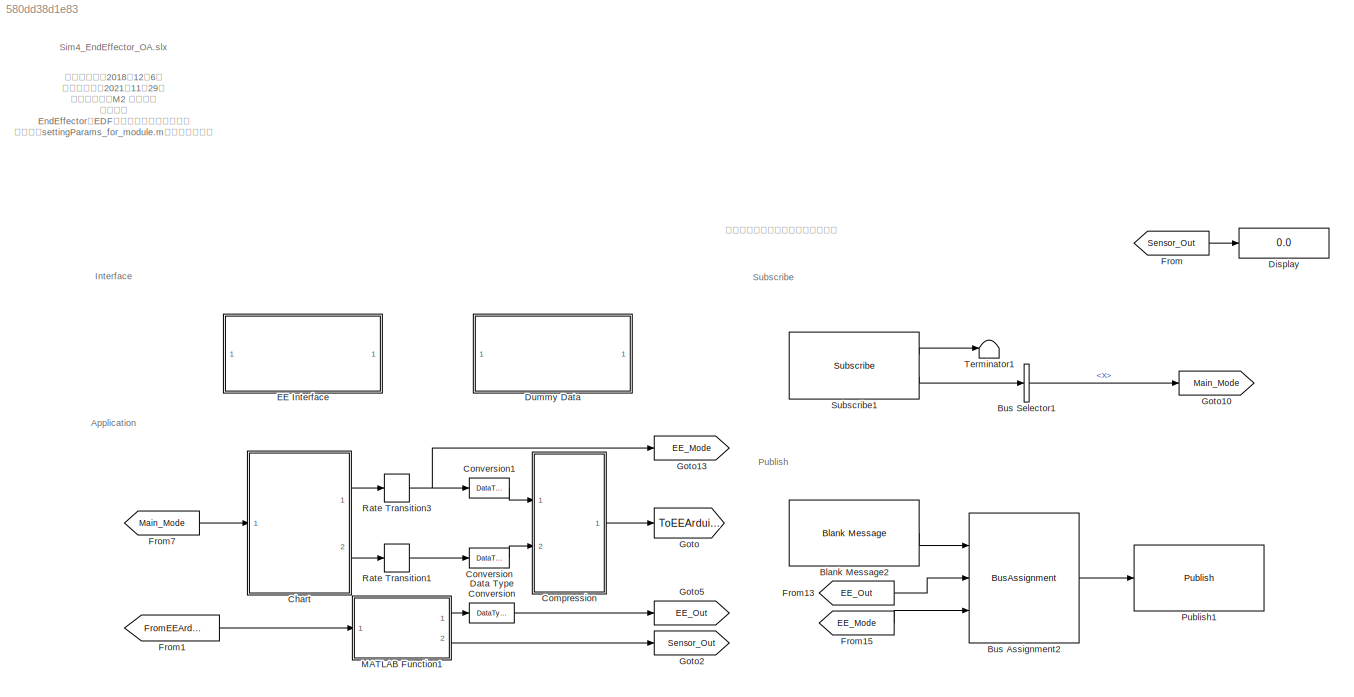
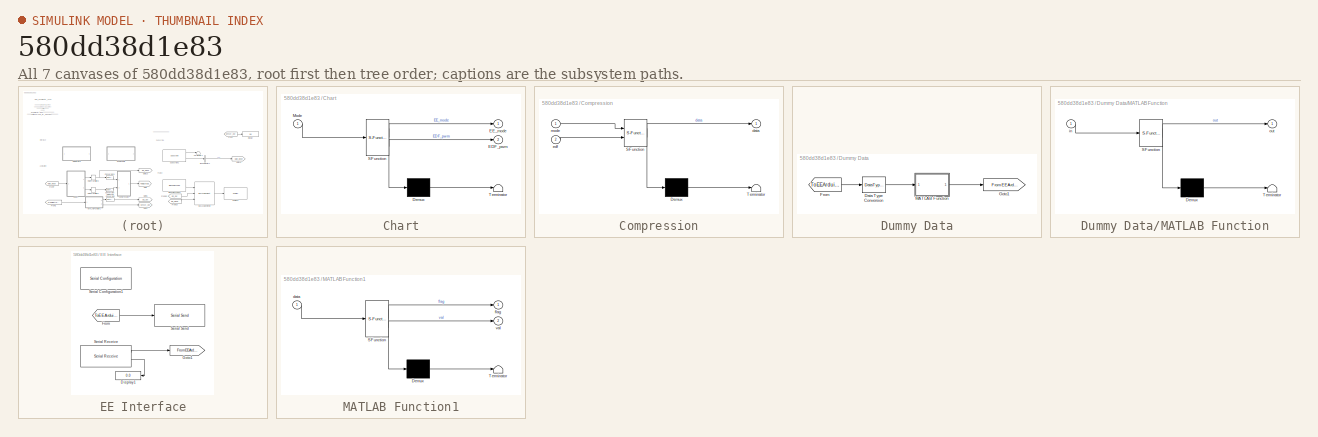
[diagram: thumbnail index - all 7 canvases of the model, root first then tree order]
MODEL slx_580dd38d1e83
KIND model
CONFIG AbsTol = auto
CONFIG EnableMultiTasking = off
CONFIG FixedStep = auto
CONFIG InitFcn = run('settingParams.m')\n%GUI = evalin('base','GUI_handle');
CONFIG MaxStep = auto
CONFIG MinStep = auto
CONFIG PreLoadFcn = %GUI = evalin('base','GUI_handle');
CONFIG RelTol = 1e-3
CONFIG SampleTimeConstraint = Unconstrained
CONFIG SolverName = VariableStepAuto
CONFIG StartTime = 0.0
CONFIG StopTime = Inf
BLOCK [Reference] Blank Message2  REF=robotlib/Blank Message
  Ports = [0, 1]
  SourceBlock = robotlib/Blank Message
  SourceProductBaseCode = RR
  SourceType = ROS Blank Message
BLOCK [BusAssignment] Bus Assignment2
  AssignedSignals = Twist.Linear.X,Twist.Linear.Y
  Ports = [3, 1]
BLOCK [BusSelector] Bus Selector1
  OutputSignals = Twist.Linear.X
  Ports = [1, 1]
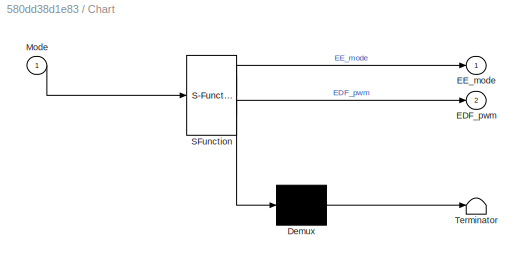
BLOCK [SubSystem] Chart
  ErrorFcn = Stateflow.Translate.translate
  PermitHierarchicalResolution = ExplicitOnly
  Ports = [1, 2]
  RequestExecContextInheritance = off
  SFBlockType = Chart
  TreatAsAtomicUnit = on
BLOCK [Demux] Chart/ Demux 
  Outputs = 1
  Ports = [1, 1]
BLOCK [S-Function] Chart/ SFunction 
  EnableBusSupport = off
  FunctionName = sf_sfun
  PortCounts = [1 3]
  Ports = [1, 3]
  SFcnIsStateOwnerBlock = off
  SFunctionDeploymentMode = off
  Tag = Stateflow S-Function 10
BLOCK [Terminator] Chart/ Terminator 
BLOCK [Outport] Chart/EDF_pwm
  Port = 2
  VectorParamsAs1DForOutWhenUnconnected = off
BLOCK [Outport] Chart/EE_mode
  VectorParamsAs1DForOutWhenUnconnected = off
BLOCK [Inport] Chart/Mode
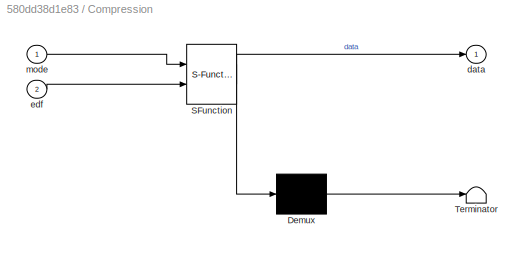
BLOCK [SubSystem] Compression
  ErrorFcn = Stateflow.Translate.translate
  PermitHierarchicalResolution = ExplicitOnly
  Ports = [2, 1]
  RequestExecContextInheritance = off
  SFBlockType = MATLAB Function
  TreatAsAtomicUnit = on
BLOCK [Demux] Compression/ Demux 
  Outputs = 1
  Ports = [1, 1]
BLOCK [S-Function] Compression/ SFunction 
  EnableBusSupport = off
  FunctionName = sf_sfun
  PortCounts = [2 2]
  Ports = [2, 2]
  SFcnIsStateOwnerBlock = off
  SFunctionDeploymentMode = off
  Tag = Stateflow S-Function 16
BLOCK [Terminator] Compression/ Terminator 
BLOCK [Outport] Compression/data
  VectorParamsAs1DForOutWhenUnconnected = off
BLOCK [Inport] Compression/edf
  Port = 2
BLOCK [Inport] Compression/mode
BLOCK [DataTypeConversion] Conversion
  OutDataTypeStr = uint8
  RndMeth = Floor
  SaturateOnIntegerOverflow = off
BLOCK [DataTypeConversion] Conversion1
  OutDataTypeStr = uint8
  RndMeth = Floor
  SaturateOnIntegerOverflow = off
BLOCK [DataTypeConversion] Data Type Conversion
  RndMeth = Floor
  SaturateOnIntegerOverflow = off
BLOCK [Display] Display
  Decimation = 1
  Ports = [1]
BLOCK [SubSystem] Dummy Data
  Commented = on
  Ports = []
  RequestExecContextInheritance = off
BLOCK [DataTypeConversion] Dummy Data/Data Type Conversion
  OutDataTypeStr = double
  RndMeth = Floor
  SaturateOnIntegerOverflow = off
BLOCK [From] Dummy Data/From
  GotoTag = ToEEArduino
  TagVisibility = global
BLOCK [Goto] Dummy Data/Goto1
  GotoTag = FromEEArduino
  TagVisibility = global
BLOCK [SubSystem] Dummy Data/MATLAB Function
  ErrorFcn = Stateflow.Translate.translate
  PermitHierarchicalResolution = ExplicitOnly
  Ports = [1, 1]
  RequestExecContextInheritance = off
  SFBlockType = MATLAB Function
  TreatAsAtomicUnit = on
BLOCK [Demux] Dummy Data/MATLAB Function/ Demux 
  Outputs = 1
  Ports = [1, 1]
BLOCK [S-Function] Dummy Data/MATLAB Function/ SFunction 
  EnableBusSupport = off
  FunctionName = sf_sfun
  PortCounts = [1 2]
  Ports = [1, 2]
  SFcnIsStateOwnerBlock = off
  SFunctionDeploymentMode = off
  Tag = Stateflow S-Function 1
BLOCK [Terminator] Dummy Data/MATLAB Function/ Terminator 
BLOCK [Inport] Dummy Data/MATLAB Function/in
BLOCK [Outport] Dummy Data/MATLAB Function/out
  VectorParamsAs1DForOutWhenUnconnected = off
BLOCK [SubSystem] EE Interface
  Ports = []
  RequestExecContextInheritance = off
BLOCK [Display] EE Interface/Display1
  Commented = on
  Decimation = 1
  Format = long
  Ports = [1]
BLOCK [From] EE Interface/From
  GotoTag = ToEEArduino
  TagVisibility = global
BLOCK [Goto] EE Interface/Goto1
  GotoTag = FromEEArduino
  TagVisibility = global
BLOCK [Reference] EE Interface/Serial Configuration1  REF=instrumentseriallib/Serial Configuration
  Ports = []
  Priority = -200000
  SourceBlock = instrumentseriallib/Serial Configuration
  SourceProductBaseCode = IC
  SourceType = system.SerialConfiguration
BLOCK [Reference] EE Interface/Serial Receive  REF=instrumentseriallib/Serial Receive
  Ports = [0, 2]
  Priority = 1
  SourceBlock = instrumentseriallib/Serial Receive
  SourceProductBaseCode = IC
  SourceType = system.SerialReceive
BLOCK [Reference] EE Interface/Serial Send  REF=instrumentseriallib/Serial Send
  Ports = [1]
  Priority = 1
  SourceBlock = instrumentseriallib/Serial Send
  SourceProductBaseCode = IC
  SourceType = system.SerialSend
BLOCK [From] From
  GotoTag = Sensor_Out
  TagVisibility = global
BLOCK [From] From1
  GotoTag = FromEEArduino
  TagVisibility = global
BLOCK [From] From13
  GotoTag = EE_Out
  TagVisibility = global
BLOCK [From] From15
  GotoTag = EE_Mode
  TagVisibility = global
BLOCK [From] From7
  GotoTag = Main_Mode
  TagVisibility = global
BLOCK [Goto] Goto
  GotoTag = ToEEArduino
  TagVisibility = global
BLOCK [Goto] Goto10
  GotoTag = Main_Mode
  TagVisibility = global
BLOCK [Goto] Goto13
  GotoTag = EE_Mode
  TagVisibility = global
BLOCK [Goto] Goto2
  GotoTag = Sensor_Out
  TagVisibility = global
BLOCK [Goto] Goto5
  GotoTag = EE_Out
  TagVisibility = global
BLOCK [SubSystem] MATLAB Function1
  ErrorFcn = Stateflow.Translate.translate
  PermitHierarchicalResolution = ExplicitOnly
  Ports = [1, 2]
  RequestExecContextInheritance = off
  SFBlockType = MATLAB Function
  TreatAsAtomicUnit = on
BLOCK [Demux] MATLAB Function1/ Demux 
  Outputs = 1
  Ports = [1, 1]
BLOCK [S-Function] MATLAB Function1/ SFunction 
  EnableBusSupport = off
  FunctionName = sf_sfun
  PortCounts = [1 3]
  Ports = [1, 3]
  SFcnIsStateOwnerBlock = off
  SFunctionDeploymentMode = off
  Tag = Stateflow S-Function 18
BLOCK [Terminator] MATLAB Function1/ Terminator 
BLOCK [Inport] MATLAB Function1/data
BLOCK [Outport] MATLAB Function1/flag
  VectorParamsAs1DForOutWhenUnconnected = off
BLOCK [Outport] MATLAB Function1/val
  Port = 2
  VectorParamsAs1DForOutWhenUnconnected = off
BLOCK [Reference] Publish1  REF=robotlib/Publish
  Ports = [1]
  SourceBlock = robotlib/Publish
  SourceProductBaseCode = RR
  SourceType = ROS Publish
BLOCK [RateTransition] Rate Transition1
  OutPortSampleTime = 0.1
BLOCK [RateTransition] Rate Transition3
  OutPortSampleTime = 0.1
BLOCK [Reference] Subscribe1  REF=robotlib/Subscribe
  Ports = [0, 2]
  SourceBlock = robotlib/Subscribe
  SourceProductBaseCode = RR
  SourceType = ROS Subscribe
BLOCK [Terminator] Terminator1
ANNOTATION (root): 初回作成日：2018年12月6日 最終更新日：2021 年11月29日 最終更新者：M2 塩路甲斐 注意点： EndEffectorとEDFを制御するモデルです． 実行時にsettingParams_for_module.mを実行します． 実働時にはワーカーとして立ち上がるため，Supervisorとは別のワークスペースを適用します． EEのArduinoプログラム"EE_OA.ino"が書き込まれていることを確認してください． Setting Parameter： dt
ANNOTATION (root): ※直交アーム用のプログラムです！
ANNOTATION (root): Application
ANNOTATION (root): Interface
ANNOTATION (root): Publish
ANNOTATION (root): Sim4_EndEffector_OA.slx
ANNOTATION (root): Subscribe
LINE Blank Message2:1 -> Bus Assignment2:1
LINE Bus Assignment2:1 -> Publish1:1
LINE Bus Selector1:1 -> Goto10:1
LINE Chart:1 -> Rate Transition3:1
LINE Chart:2 -> Rate Transition1:1
LINE Compression:1 -> Goto:1
LINE Conversion1:1 -> Compression:1
LINE Conversion:1 -> Compression:2
LINE Data Type Conversion:1 -> Goto5:1
LINE Dummy Data/Data Type Conversion:1 -> Dummy Data/MATLAB Function:1
LINE Dummy Data/From:1 -> Dummy Data/Data Type Conversion:1
LINE Dummy Data/MATLAB Function:1 -> Dummy Data/Goto1:1
LINE EE Interface/From:1 -> EE Interface/Serial Send:1
LINE EE Interface/Serial Receive:1 -> EE Interface/Goto1:1
LINE EE Interface/Serial Receive:2 -> EE Interface/Display1:1
LINE From13:1 -> Bus Assignment2:2
LINE From15:1 -> Bus Assignment2:3
LINE From1:1 -> MATLAB Function1:1
LINE From7:1 -> Chart:1
LINE From:1 -> Display:1
LINE MATLAB Function1:1 -> Data Type Conversion:1
LINE MATLAB Function1:2 -> Goto2:1
LINE Rate Transition1:1 -> Conversion:1
NET Rate Transition3:1 -> Conversion1:1, Goto13:1
LINE Subscribe1:1 -> Terminator1:1
LINE Subscribe1:2 -> Bus Selector1:1
note: NET lines group one-source signal fan-out (src -> all destinations, sorted); 1:1 wires keep LINE
CHART Dummy Data/MATLAB Function states=1 transitions=1
  STATE_LABEL 'eML_blk_kernel()'
  STATE_LABEL 'SCRIPT:\nfunction out = fcn(in)\n\nswitch in\n    case 0\n        data = 0;\n    case 1\n        data = 5;\n    case 2\n        data = 6;\n    case 3\n        data = 7;\n    case 4\n        data = 4;\n    otherwise\n        data = 0;\nend\n\nout = uint8(bitshift(data,5));'
CHART Chart states=7 transitions=9
  STATE_LABEL 'EE_mode0 待機\nEE_mode1 吸引指令\nEE_mode2 EE閉じる（吸引）\nEE_mode3 EE開く（吸引）\nEE_mode4 閉じたままホールド'
  STATE_LABEL 'Mode42 EE吸引\nMode43 光センサ\n\nMode45 上EESW反応\nMode61 把持成功\n\n\nMode47 収穫失敗\nMode70 終了モード'
  STATE_LABEL 'm03/\n% 切断2_逆転中\nentry:\nEE_mode=3;\nEDF_pwm=17;'
  STATE_LABEL 'm0/\n% 待機中\nentry:\nEE_mode=0;\nEDF_pwm=0;'
  STATE_LABEL 'm01/\n% 吸引中\nentry:\nEE_mode=1;\nEDF_pwm=19;'
  STATE_LABEL 'm04/\n% 把持中\nentry:\nEE_mode=4;\nEDF_pwm=18;'
  STATE_LABEL 'm02/\n% 切断1_正転中\nentry:\nEE_mode=2;\nEDF_pwm=20;'
CHART Compression states=1 transitions=1
  STATE_LABEL 'eML_blk_kernel()'
  STATE_LABEL 'SCRIPT:\nfunction data = fcn(mode, edf)\n\nif mode < 0\n    mode = uint8(0);\nelseif mode > 7\n    mode = uint8(7);\nend\n\nif edf > 25\n    edf = uint8(25);\nend\n\npwm = uint8(edf);\n\ndata = bitshift(mode,5) + pwm;'
CHART MATLAB Function1 states=1 transitions=1
  STATE_LABEL 'eML_blk_kernel()'
  STATE_LABEL 'SCRIPT:\nfunction [flag,val] = fcn(data)\n\n% 入力(data)を右に5bitシフトして、上位3bitを取り出す\nflag = uint8(bitshift(data,-4));\n\n% 入力(data)と31(00011111)のAND演算をして、下位5bitを取り出す\na = double( bitand(data, 15));\n\nval = (a + 41) * 20;'
CHART  states=0 transitions=0
CHART  states=0 transitions=0
CHART  states=0 transitions=0
CHART  states=0 transitions=0
